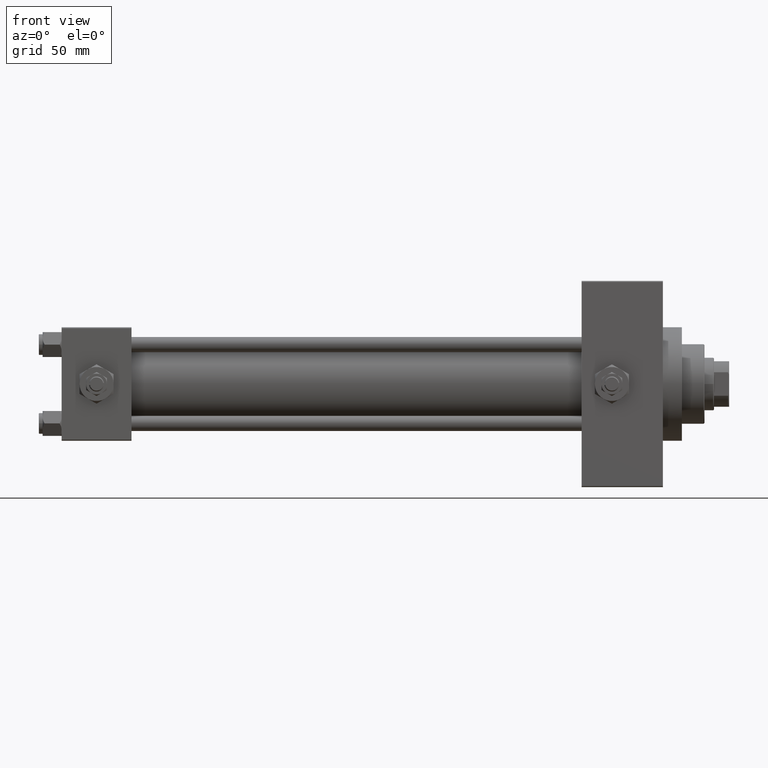
[diagram: clean part render]
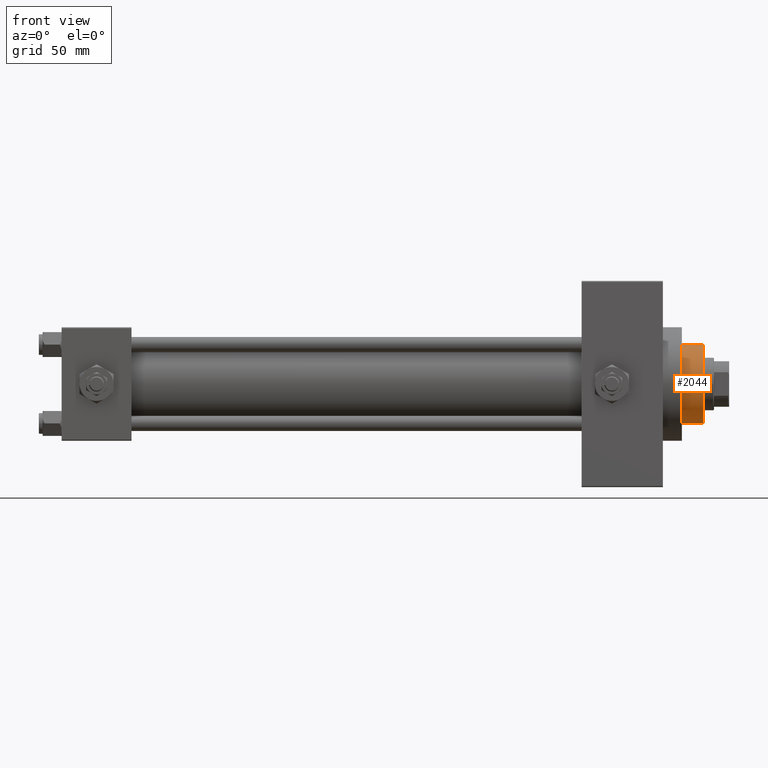
[diagram: same view with one face highlighted and labeled with its STEP entity id]
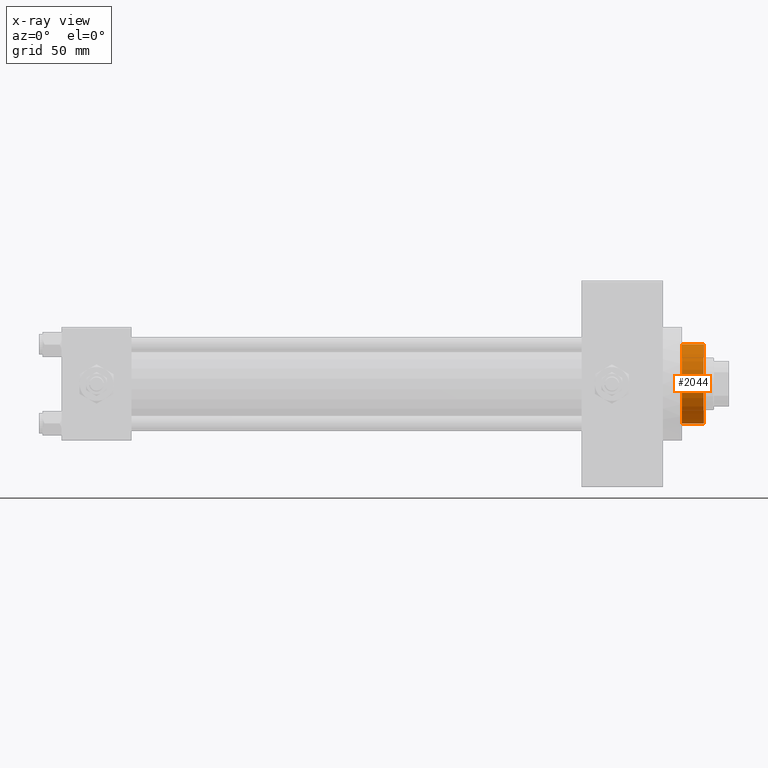
[diagram: x-ray of the same camera — body ghosted, the highlighted face saturated]
A machine part, front view. The second image highlights one B-rep face of the part: STEP entity #2044.
The next image is the same camera in x-ray: the body ghosted, the highlighted face saturated — about 0% of this face is hidden behind the body in this view.
In plain terms, the highlighted cylindrical surface (partial cylindrical patch) has radius 21 mm, axis along (-1, 0, 0).
Its self-contained STEP definition (entity closure, byte-faithful):
#626 = VERTEX_POINT ( 'NONE', #32093 ) ;
#916 = AXIS2_PLACEMENT_3D ( 'NONE', #13385, #31614, #12431 ) ;
#1799 = CARTESIAN_POINT ( 'NONE',  ( -21.00000000000000000, 0.000000000000000000, 54.75999999999999091 ) ) ;
#2044 = ADVANCED_FACE ( 'NONE', ( #31365 ), #36057, .T. ) ;
#3103 = EDGE_CURVE ( 'NONE', #11413, #29237, #45768, .T. ) ;
#5618 = EDGE_LOOP ( 'NONE', ( #29227, #24563, #37667, #29826 ) ) ;
#7875 = CARTESIAN_POINT ( 'NONE',  ( 21.00000000000000000, 2.571758278209441661E-15, 43.25999999999999801 ) ) ;
#8867 = DIRECTION ( 'NONE',  ( 0.000000000000000000, 0.000000000000000000, 1.000000000000000000 ) ) ;
#9840 = CARTESIAN_POINT ( 'NONE',  ( 0.000000000000000000, 0.000000000000000000, 54.75999999999999091 ) ) ;
#10038 = AXIS2_PLACEMENT_3D ( 'NONE', #9840, #21530, #36248 ) ;
#10947 = EDGE_CURVE ( 'NONE', #29237, #626, #30657, .T. ) ;
#11385 = VERTEX_POINT ( 'NONE', #1799 ) ;
#11413 = VERTEX_POINT ( 'NONE', #21220 ) ;
#11888 = CARTESIAN_POINT ( 'NONE',  ( 21.00000000000000000, 2.571758278209441661E-15, 55.26000000000000512 ) ) ;
#12431 = DIRECTION ( 'NONE',  ( -1.000000000000000000, 0.000000000000000000, 0.000000000000000000 ) ) ;
#13076 = DIRECTION ( 'NONE',  ( 1.000000000000000000, 0.000000000000000000, 0.000000000000000000 ) ) ;
#13385 = CARTESIAN_POINT ( 'NONE',  ( 0.000000000000000000, 0.000000000000000000, 55.26000000000000512 ) ) ;
#17046 = EDGE_CURVE ( 'NONE', #11385, #11413, #43427, .T. ) ;
#17362 = VECTOR ( 'NONE', #22671, 1000.000000000000000 ) ;
#21220 = CARTESIAN_POINT ( 'NONE',  ( 21.00000000000000000, 2.571758278209441661E-15, 54.75999999999999091 ) ) ;
#21530 = DIRECTION ( 'NONE',  ( 0.000000000000000000, 0.000000000000000000, -1.000000000000000000 ) ) ;
#22671 = DIRECTION ( 'NONE',  ( -0.000000000000000000, -0.000000000000000000, -1.000000000000000000 ) ) ;
#23211 = EDGE_CURVE ( 'NONE', #11385, #626, #49103, .T. ) ;
#24563 = ORIENTED_EDGE ( 'NONE', *, *, #3103, .T. ) ;
#26667 = CARTESIAN_POINT ( 'NONE',  ( -21.00000000000000000, 0.000000000000000000, 55.26000000000000512 ) ) ;
#29227 = ORIENTED_EDGE ( 'NONE', *, *, #17046, .T. ) ;
#29237 = VERTEX_POINT ( 'NONE', #7875 ) ;
#29826 = ORIENTED_EDGE ( 'NONE', *, *, #23211, .F. ) ;
#30657 = CIRCLE ( 'NONE', #36176, 21.00000000000000000 ) ;
#31365 = FACE_OUTER_BOUND ( 'NONE', #5618, .T. ) ;
#31614 = DIRECTION ( 'NONE',  ( -0.000000000000000000, -0.000000000000000000, -1.000000000000000000 ) ) ;
#32093 = CARTESIAN_POINT ( 'NONE',  ( -21.00000000000000000, 0.000000000000000000, 43.25999999999999801 ) ) ;
#34051 = DIRECTION ( 'NONE',  ( -0.000000000000000000, -0.000000000000000000, -1.000000000000000000 ) ) ;
#36057 = CYLINDRICAL_SURFACE ( 'NONE', #916, 21.00000000000000000 ) ;
#36176 = AXIS2_PLACEMENT_3D ( 'NONE', #39979, #8867, #13076 ) ;
#36248 = DIRECTION ( 'NONE',  ( 1.000000000000000000, 0.000000000000000000, 0.000000000000000000 ) ) ;
#37667 = ORIENTED_EDGE ( 'NONE', *, *, #10947, .T. ) ;
#39979 = CARTESIAN_POINT ( 'NONE',  ( 0.000000000000000000, 0.000000000000000000, 43.25999999999999801 ) ) ;
#42406 = VECTOR ( 'NONE', #34051, 1000.000000000000000 ) ;
#43427 = CIRCLE ( 'NONE', #10038, 21.00000000000000000 ) ;
#45768 = LINE ( 'NONE', #11888, #42406 ) ;
#49103 = LINE ( 'NONE', #26667, #17362 ) ;